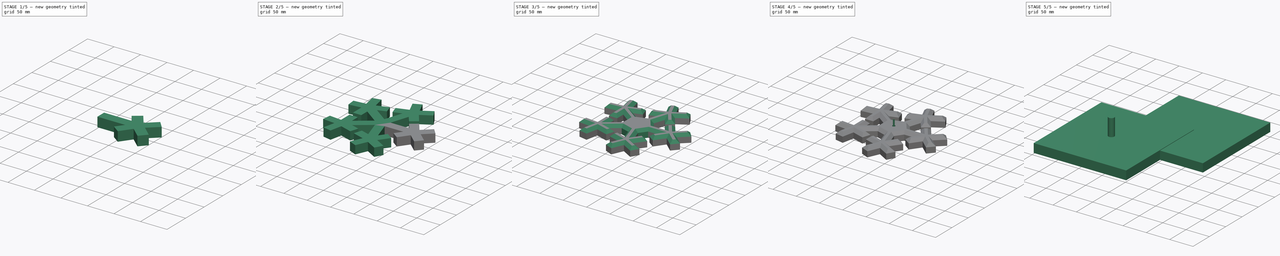
[diagram: build sequence overview — one tinted view per stage of 5, left to right]
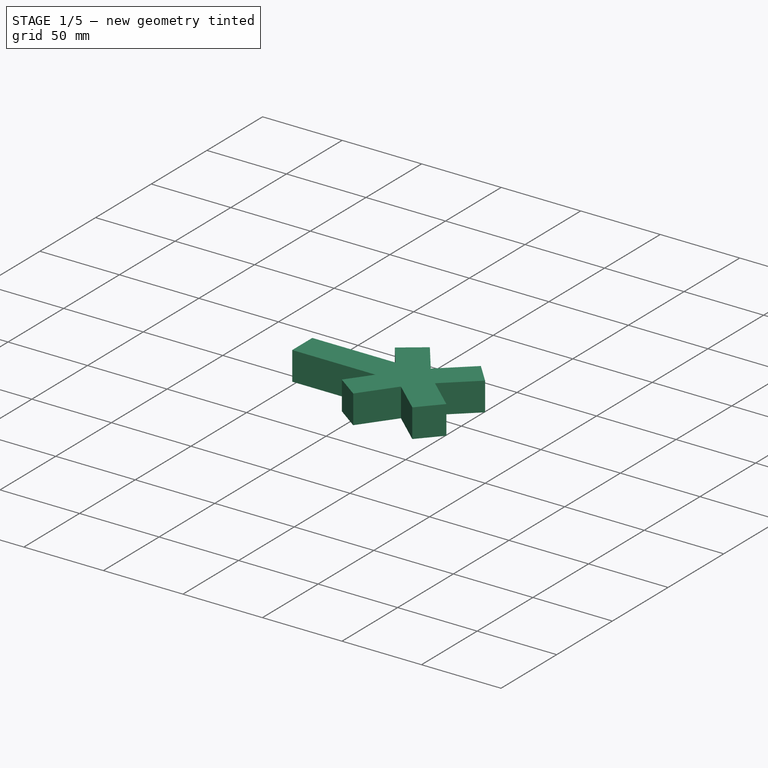
[diagram: stage 1 of 5 — iso view after this stage's code; geometry added in this stage tinted green]
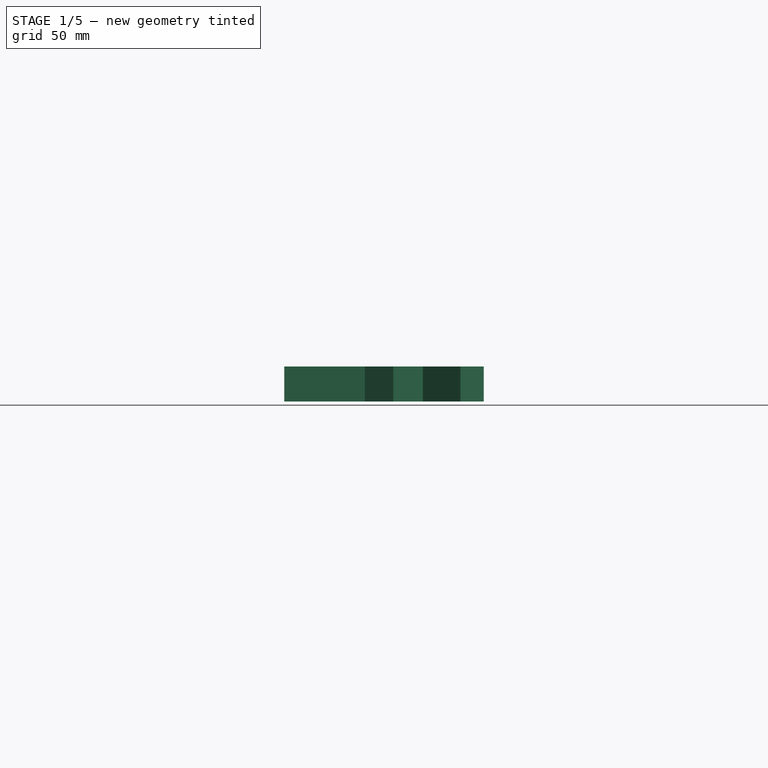
[diagram: stage 1 of 5 — front view after this stage's code; geometry added in this stage tinted green]
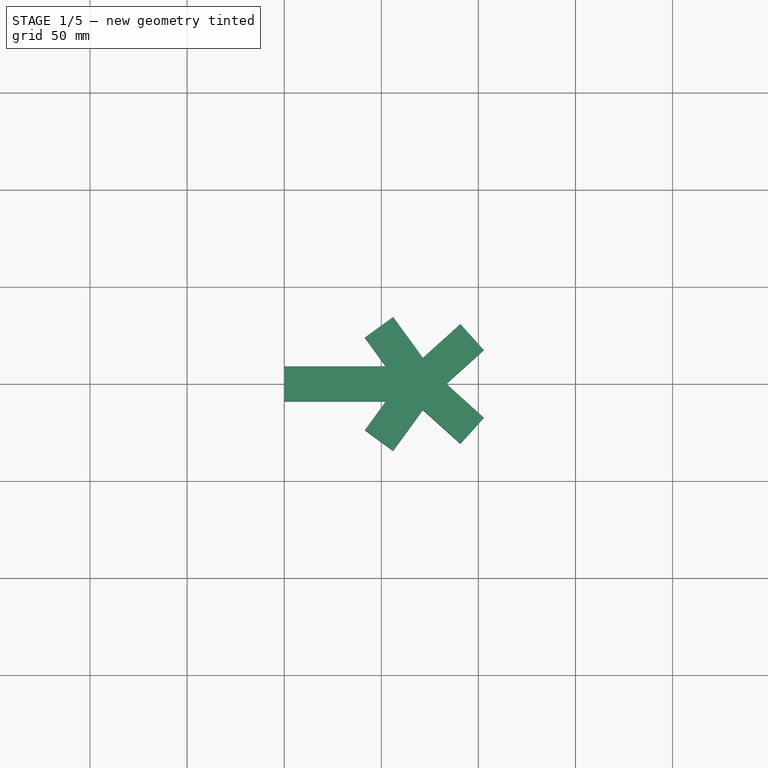
[diagram: stage 1 of 5 — top view after this stage's code; geometry added in this stage tinted green]
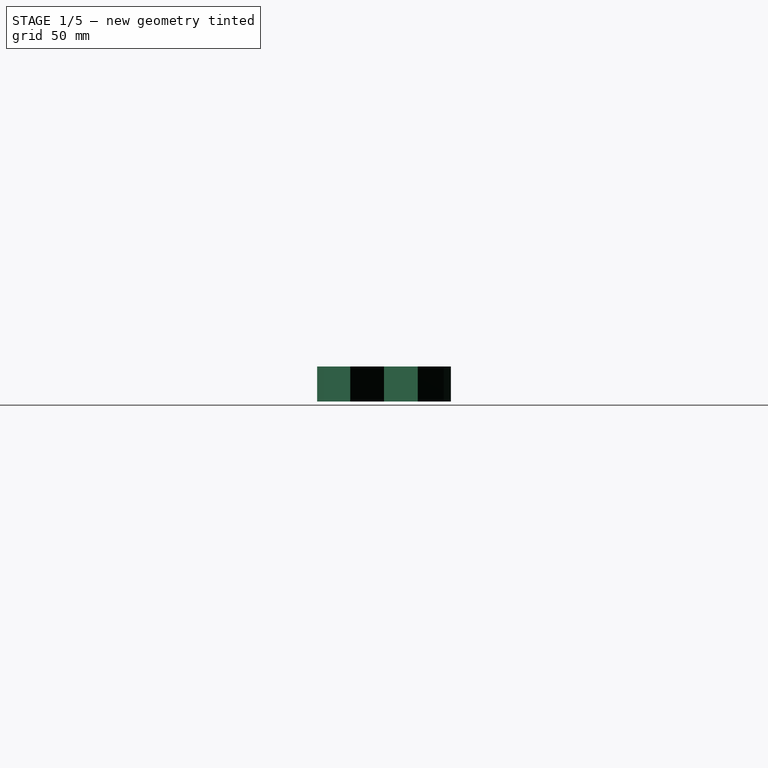
[diagram: stage 1 of 5 — right view after this stage's code; geometry added in this stage tinted green]
FCSTD DOCUMENT  (FreeCAD 0.22R35456 (Git))
Label: Christmas-tree-base
License: All rights reserved
LicenseURL: http://en.wikipedia.org/wiki/All_rights_reserved
objects: Part::FeaturePython×15, Path::FeaturePython×7, Sketcher::SketchObject×5, App::DocumentObjectGroup×3, Part::Compound×2, Part::Extrusion×2, PartDesign::Body×2, Part::Mirroring×1, Part::MultiFuse×1, PartDesign::FeatureBase×1, Part::Cylinder×1, App::FeaturePython×1, PartDesign::Pad×1, PartDesign::PolarPattern×1, PartDesign::Chamfer×1, PartDesign::Boolean×1
note: 39 computed .brp shape members not serialized (recipe doc carries the construction recipe); baked Part::Feature solids carry a one-line shape summary decoded from their .brp

FEATURE [Sketcher::SketchObject] Sketch
  FullyConstrained = false
  expr: Constraints[1] = 360 deg / PolarArray.Count / 2
  sketch-geometry (19):
    g0: LineSegment StartX=0 StartY=0 StartZ=0 EndX=113.262 EndY=82.2899 EndZ=0
    g1: LineSegment StartX=0 StartY=0 StartZ=0 EndX=140 EndY=0 EndZ=0
    g2: LineSegment StartX=18.3104 StartY=13.3033 StartZ=0 EndX=53.4449 EndY=13.3033 EndZ=0
    g3: LineSegment StartX=53.4449 StartY=13.3033 StartZ=0 EndX=64.3661 EndY=36.3417 EndZ=0
    g4: LineSegment StartX=64.3661 StartY=36.3417 StartZ=0 EndX=52.0079 EndY=50.1369 EndZ=0
    g5: LineSegment StartX=52.0079 StartY=50.1369 StartZ=0 EndX=59.4803 EndY=55.0227 EndZ=0
    g6: LineSegment StartX=59.4803 StartY=55.0227 StartZ=0 EndX=68.3897 EndY=43.2393 EndZ=0
    g7: LineSegment StartX=68.3897 StartY=43.2393 StartZ=0 EndX=70.9763 EndY=64.7943 EndZ=0
    g8: LineSegment StartX=70.9763 StartY=64.7943 StartZ=0 EndX=77.2991 EndY=64.7943 EndZ=0
    g9: LineSegment StartX=77.2991 StartY=64.7943 StartZ=0 EndX=74.4251 EndY=42.9519 EndZ=0
    g10: LineSegment StartX=74.4251 StartY=42.9519 StartZ=0 EndX=89.6573 EndY=53.5857 EndZ=0
    g11: LineSegment StartX=89.6573 StartY=53.5857 StartZ=0 EndX=93.6809 EndY=45.2511 EndZ=0
    g12: LineSegment StartX=93.6809 StartY=45.2511 StartZ=0 EndX=77.5865 EndY=37.4913 EndZ=0
    g13: LineSegment StartX=77.5865 StartY=37.4913 StartZ=0 EndX=67.8149 EndY=18.5228 EndZ=0
    g14: LineSegment StartX=67.8149 StartY=18.5228 StartZ=0 EndX=123.283 EndY=18.5228 EndZ=0
    g15: LineSegment StartX=123.283 StartY=18.5228 StartZ=0 EndX=128.169 EndY=42.0897 EndZ=0
    g16: LineSegment StartX=128.169 StartY=42.0897 StartZ=0 EndX=133.917 EndY=41.5149 EndZ=0
    g17: LineSegment StartX=133.917 StartY=41.5149 StartZ=0 EndX=129.031 EndY=15.3614 EndZ=0
    g18: LineSegment StartX=129.031 StartY=15.3614 StartZ=0 EndX=130.756 EndY=0 EndZ=0
  constraints (27):
    c: Coincident(g0,g-1)
    c: Angle(g0) = 0.628319
    c: Coincident(g1,g0)
    c: PointOnObject(g1,g-1)
    c: Equal(g1,g0)
    c: DistanceX(g1,g1) = 140
    c: PointOnObject(g2,g0)
    c: Horizontal(g2)
    c: Coincident(g2,g3)
    c: Coincident(g3,g4)
    c: Coincident(g4,g5)
    c: Coincident(g5,g6)
    c: Coincident(g6,g7)
    c: Coincident(g7,g8)
    c: Horizontal(g8)
    c: Coincident(g8,g9)
    c: Coincident(g9,g10)
    c: Coincident(g10,g11)
    c: Coincident(g11,g12)
    c: Coincident(g12,g13)
    c: Coincident(g13,g14)
    c: Horizontal(g14)
    c: Coincident(g14,g15)
    c: Coincident(g15,g16)
    c: Coincident(g16,g17)
    c: Coincident(g17,g18)
    c: PointOnObject(g18,g1)
FEATURE [Part::Mirroring] Part__Mirroring  label="Sketch (Mirror #1)"
  Base = (0,0,0)
  Normal = (0,1,0)
  Source = -> Sketch
FEATURE [Part::Compound] Compound
  Links = -> [Part__Mirroring,Sketch]
FEATURE [Part::FeaturePython] PolarArray  # WARN: FeaturePython — macro-defined, semantics opaque (R4)
  Alignment = 0
  AttacherType = Attacher::AttachEngine3D
  CellStart = A1
  Count = 5
  DistributionLaw = 0
  EndInclusive = false
  ExposePlacement = false
  FlipX = false
  FlipZ = false
  GeneratorMode = 0
  MarkerShape = 1
  MarkerSize = 20
  NumElements = 5
  OrientMode = 2
  Radius = 0
  Reverse = false
  SpanEnd = 360
  SpanStart = 0
  Step = 72
  Type = lattice2PolarArray2.PolarArray
  UseArcRadius = false
  UseArcRange = 0
  VSGVersion = 1
  Values = 0.0 | 72.0 | 144.0 | 216.0 | 288.0
  ValuesSource = 2
  isLattice = 1
FEATURE [Part::FeaturePython] Populate  label="Populate PolarArray with Compound"  # WARN: FeaturePython — macro-defined, semantics opaque (R4)
  Copying = 0
  ExposePlacement = false
  MarkerShape = 1
  MarkerSize = 0
  NumElements = 0
  Object = -> Compound
  OutputCompounding = 1
  PlacementsTo = -> PolarArray
  Referencing = 1
  Type = lattice2PopulateCopies.LatticePopulateCopies
  isLattice = 0
FEATURE [Sketcher::SketchObject] Sketch001
  FullyConstrained = true
FEATURE [Part::FeaturePython] PolarArray001  # WARN: FeaturePython — macro-defined, semantics opaque (R4)
  Alignment = 0
  AttacherType = Attacher::AttachEngine3D
  CellStart = A1
  Count = 4
  DistributionLaw = 0
  EndInclusive = true
  ExposePlacement = false
  FlipX = false
  FlipZ = false
  GeneratorMode = 0
  MarkerShape = 1
  MarkerSize = 10
  NumElements = 4
  OrientMode = 2
  Placement = pos=(70,0,0) rot=(0,0,1;0rad)
  Radius = 36
  Reverse = false
  SpanEnd = 126
  SpanStart = -126
  Step = 84
  Type = lattice2PolarArray2.PolarArray
  UseArcRadius = false
  UseArcRange = 0
  VSGVersion = 1
  Values = -126.0 | -42.0 | 42.0 | 126.0
  ValuesSource = 2
  isLattice = 1
  expr: SpanEnd = -SpanStart
FEATURE [Sketcher::SketchObject] Sketch002
  FullyConstrained = true
  expr: Constraints[6] = <<PolarArray001>>.Radius
  sketch-geometry (5):
    g0: LineSegment StartX=-36 StartY=-9 StartZ=0 EndX=-36 EndY=9 EndZ=0
    g1: LineSegment StartX=-36 StartY=9 StartZ=0 EndX=0 EndY=9 EndZ=0
    g2: LineSegment StartX=0 StartY=9 StartZ=0 EndX=-1.4e-15 EndY=-9 EndZ=0
    g3: LineSegment StartX=-1.4e-15 StartY=-9 StartZ=0 EndX=-36 EndY=-9 EndZ=0
    g4: GeomPoint X=-18 Y=0 Z=0
  constraints (12):
    c: Coincident(g0,g1)
    c: Coincident(g1,g2)
    c: Coincident(g2,g3)
    c: Coincident(g3,g0)
    c: Symmetric(g2,g0,g4)
    c: Equal(g1,g3)
    c: Distance(g3) = 36
    c: Distance(g2) = 18
    c: Symmetric(g1,g2,g-1)
    c: Perpendicular(g0,g3)
    c: PointOnObject(g4,g-1)
    c: Perpendicular(g0,g1)
FEATURE [Part::Extrusion] Extrude
  Base = -> Sketch002
  Dir = (0,0,1)
  DirMode = 2
  FaceMakerClass = Part::FaceMakerBullseye
  LengthFwd = 18
  LengthRev = 0
  Solid = true
  Symmetric = false
FEATURE [Part::FeaturePython] Populate001  label="Populate PolarArray001 with Extrude"  # WARN: FeaturePython — macro-defined, semantics opaque (R4)
  Copying = 0
  ExposePlacement = false
  MarkerShape = 1
  MarkerSize = 0
  NumElements = 0
  Object = -> Extrude
  OutputCompounding = 1
  PlacementsTo = -> PolarArray001
  Referencing = 0
  Type = lattice2PopulateCopies.LatticePopulateCopies
  isLattice = 0
FEATURE [Sketcher::SketchObject] Sketch003
  FullyConstrained = true
  expr: Constraints[11] = <<PolarArray001>>.Placement.Base.x
  expr: Constraints[6] = <<PolarArray001>>.Placement.Base.x
  sketch-geometry (5):
    g0: LineSegment StartX=70 StartY=8.99992 StartZ=0 EndX=1.06706e-05 EndY=9 EndZ=0
    g1: LineSegment StartX=1.06706e-05 StartY=9 StartZ=0 EndX=-1.06706e-05 EndY=-9 EndZ=0
    g2: LineSegment StartX=-1.06706e-05 StartY=-9 StartZ=0 EndX=70 EndY=-9.00008 EndZ=0
    g3: LineSegment StartX=70 StartY=-9.00008 StartZ=0 EndX=70 EndY=8.99992 EndZ=0
    g4: GeomPoint X=35 Y=-4.14966e-05 Z=0
  constraints (12):
    c: Coincident(g0,g1)
    c: Coincident(g1,g2)
    c: Coincident(g2,g3)
    c: Coincident(g3,g0)
    c: Symmetric(g2,g0,g4)
    c: Symmetric(g1,g0,g-1)
    c: DistanceX(g2,g2) = 70
    c: Perpendicular(g0,g3)
    c: Perpendicular(g2,g3)
    c: Perpendicular(g0,g1)
    c: Distance(g3) = 18
    c: Distance(g2) = 70
FEATURE [Part::Extrusion] Extrude001
  Base = -> Sketch003
  Dir = (0,0,1)
  DirMode = 2
  FaceMakerClass = Part::FaceMakerBullseye
  LengthFwd = 18
  LengthRev = 0
  Solid = true
  Symmetric = false
FEATURE [Part::FeaturePython] Populate002  label="Populate PolarArray with PolarArray001"  # WARN: FeaturePython — macro-defined, semantics opaque (R4)
  Copying = 0
  ExposePlacement = false
  MarkerShape = 1
  MarkerSize = 0
  NumElements = 20
  Object = -> PolarArray001
  OutputCompounding = 0
  PlacementsTo = -> PolarArray
  Referencing = 1
  Type = lattice2PopulateCopies.LatticePopulateCopies
  isLattice = 1
FEATURE [Part::FeaturePython] Join  label="ends"  # WARN: FeaturePython — macro-defined, semantics opaque (R4)
  ExposePlacement = false
  Interleave = false
  Links = -> [Populate002]
  MarkerShape = 1
  MarkerSize = 0
  NumElements = 20
  Type = lattice2JoinArrays.JoinArrays
  isLattice = 1
FEATURE [Part::FeaturePython] Join001  label="inners"  # WARN: FeaturePython — macro-defined, semantics opaque (R4)
  ExposePlacement = false
  Interleave = false
  Links = -> [PolarArray]
  MarkerShape = 1
  MarkerSize = 5
  NumElements = 5
  Type = lattice2JoinArrays.JoinArrays
  isLattice = 1
FEATURE [Part::MultiFuse] Fusion
  Refine = true
  Shapes = -> [Populate001]
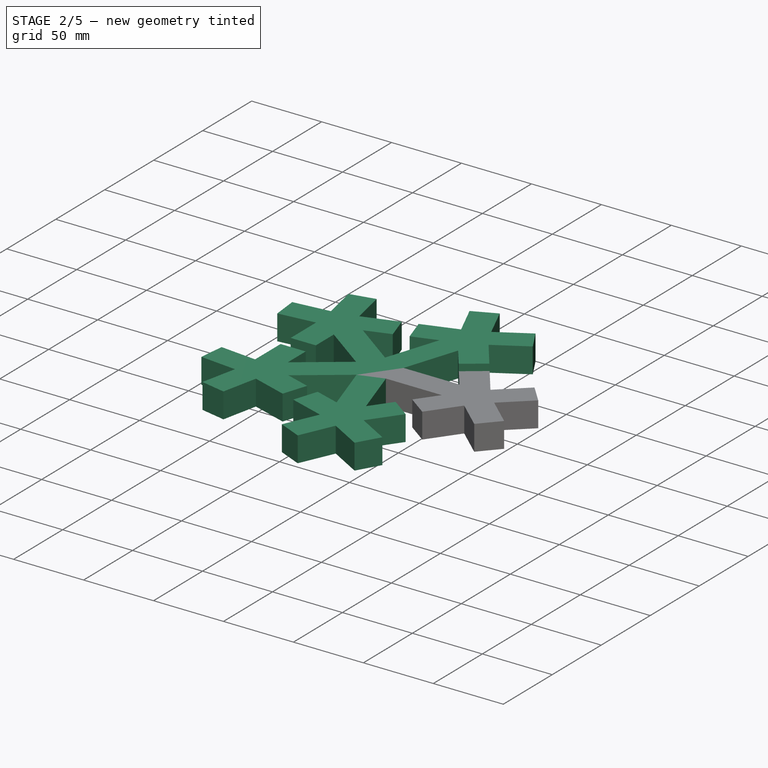
[diagram: stage 2 of 5 — iso view after this stage's code; geometry added in this stage tinted green]
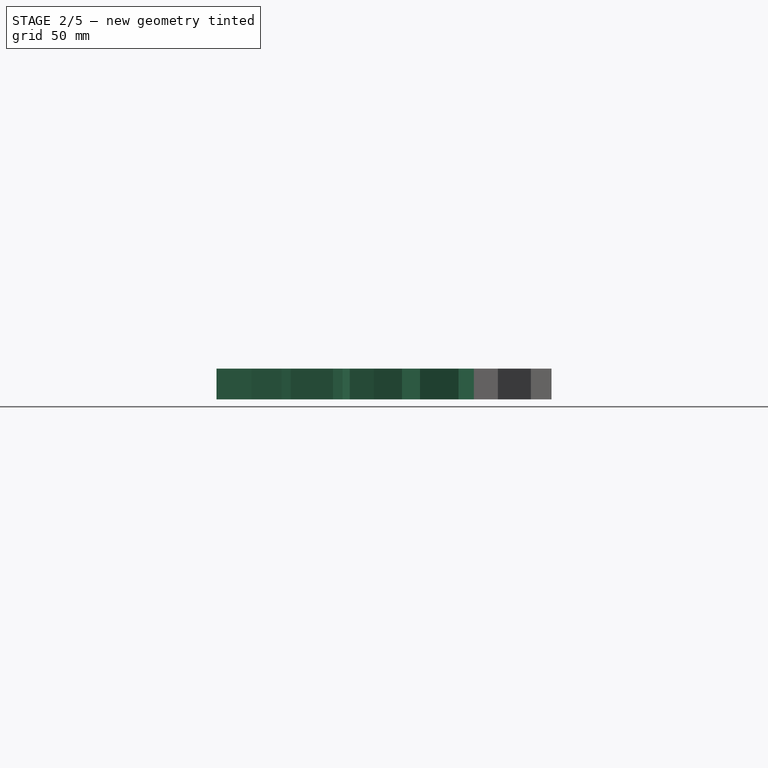
[diagram: stage 2 of 5 — front view after this stage's code; geometry added in this stage tinted green]
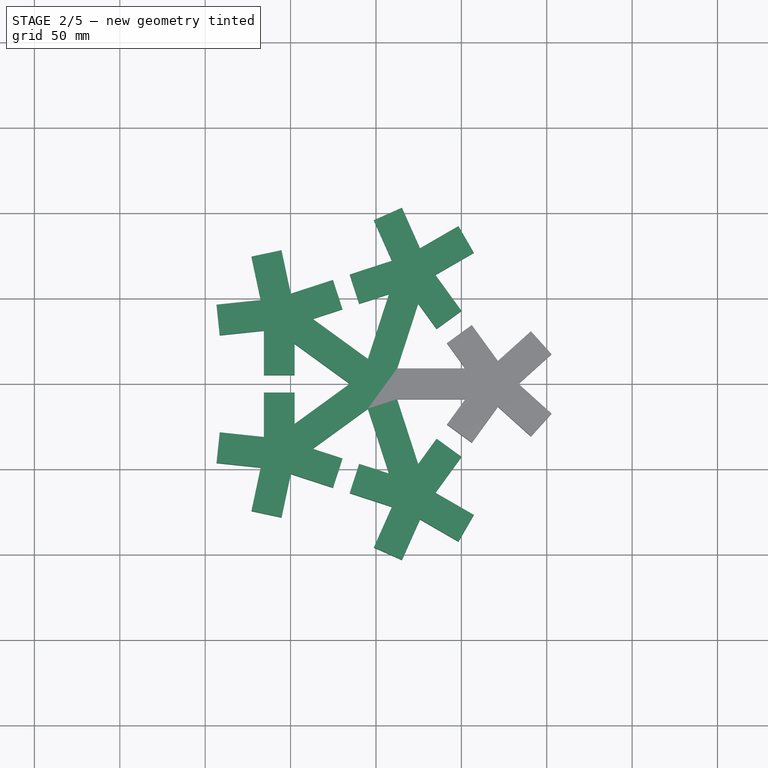
[diagram: stage 2 of 5 — top view after this stage's code; geometry added in this stage tinted green]
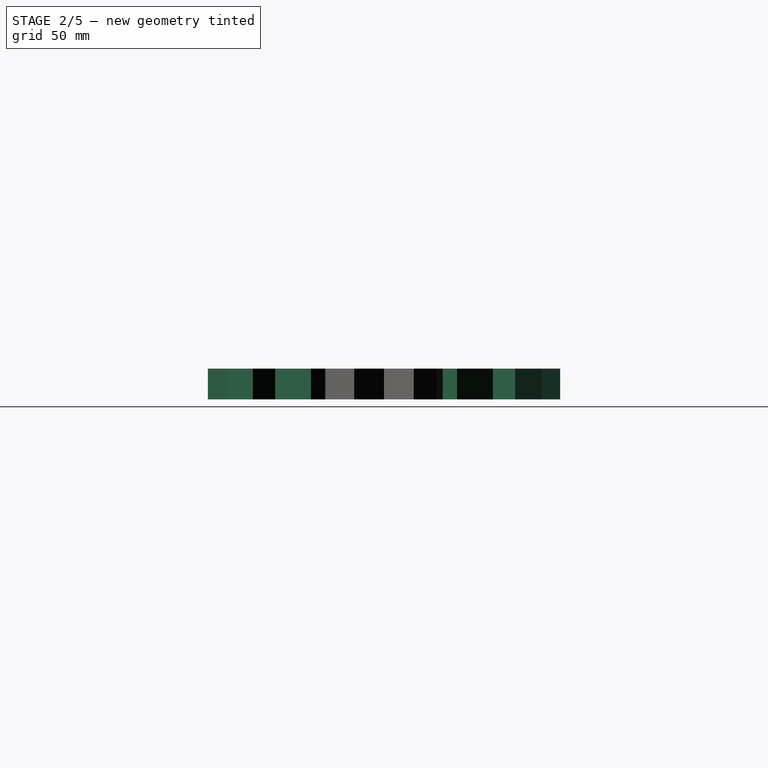
[diagram: stage 2 of 5 — right view after this stage's code; geometry added in this stage tinted green]
FEATURE [Part::FeaturePython] Connect  # WARN: FeaturePython — macro-defined, semantics opaque (R4)
  Objects = -> [Extrude001,Fusion]
  Refine = true
  Tolerance = 0
FEATURE [Part::FeaturePython] Populate003  label="Populate inners with Connect"  # WARN: FeaturePython — macro-defined, semantics opaque (R4)
  Copying = 0
  ExposePlacement = false
  MarkerShape = 1
  MarkerSize = 0
  NumElements = 0
  Object = -> Connect
  OutputCompounding = 1
  PlacementsTo = -> Join001
  Referencing = 0
  Type = lattice2PopulateCopies.LatticePopulateCopies
  isLattice = 0
FEATURE [Part::FeaturePython] Connect001  # WARN: FeaturePython — macro-defined, semantics opaque (R4)
  Objects = -> [Populate003]
  Refine = true
  Tolerance = 0
FEATURE [PartDesign::FeatureBase] BaseFeature
  BaseFeature = -> Connect001
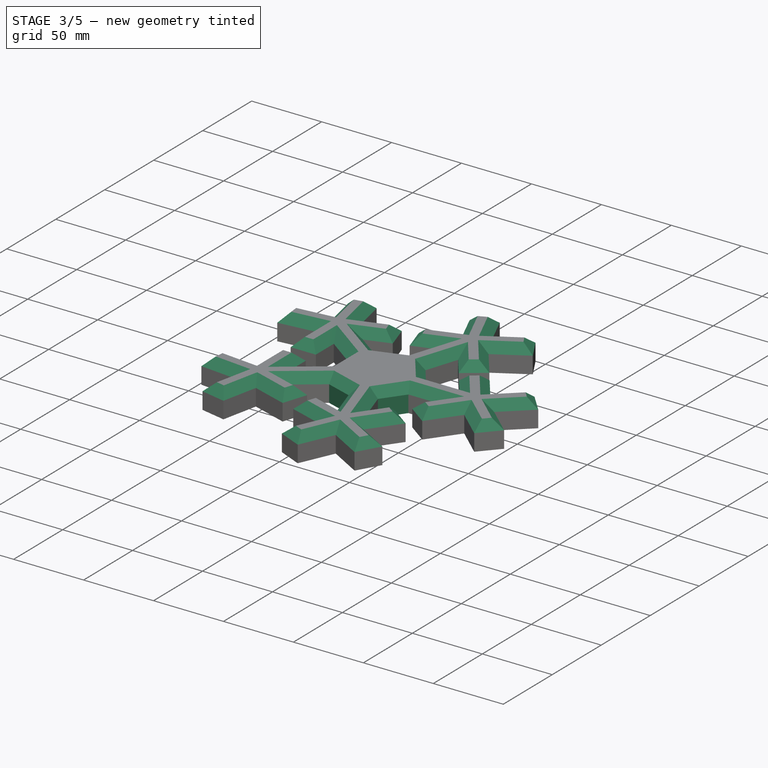
[diagram: stage 3 of 5 — iso view after this stage's code; geometry added in this stage tinted green]
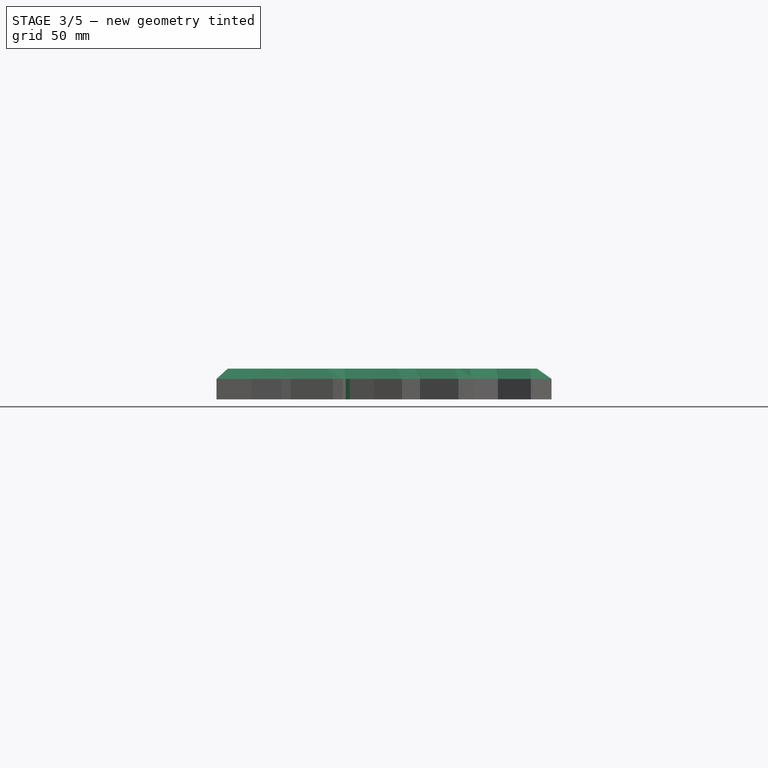
[diagram: stage 3 of 5 — front view after this stage's code; geometry added in this stage tinted green]
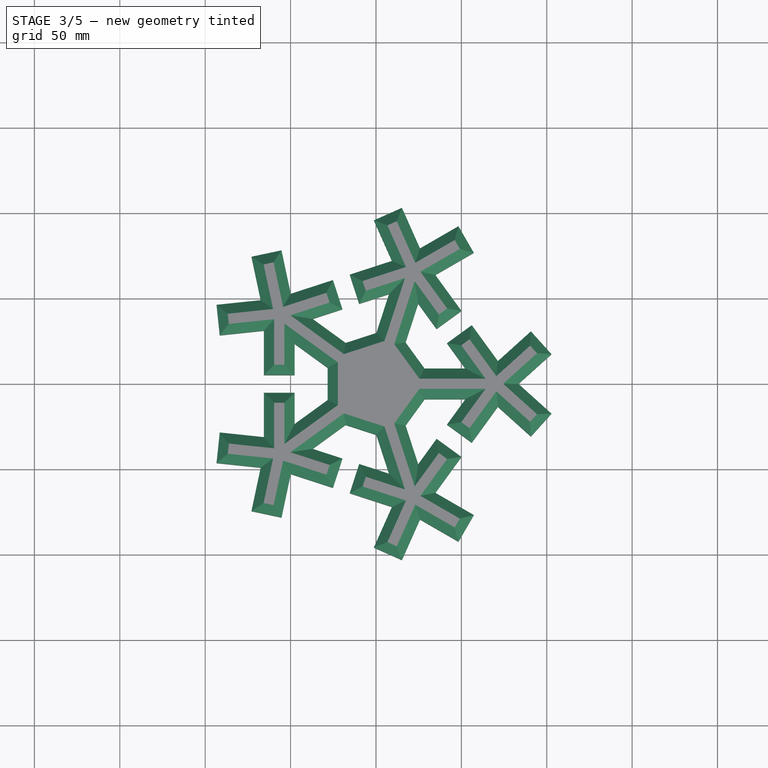
[diagram: stage 3 of 5 — top view after this stage's code; geometry added in this stage tinted green]
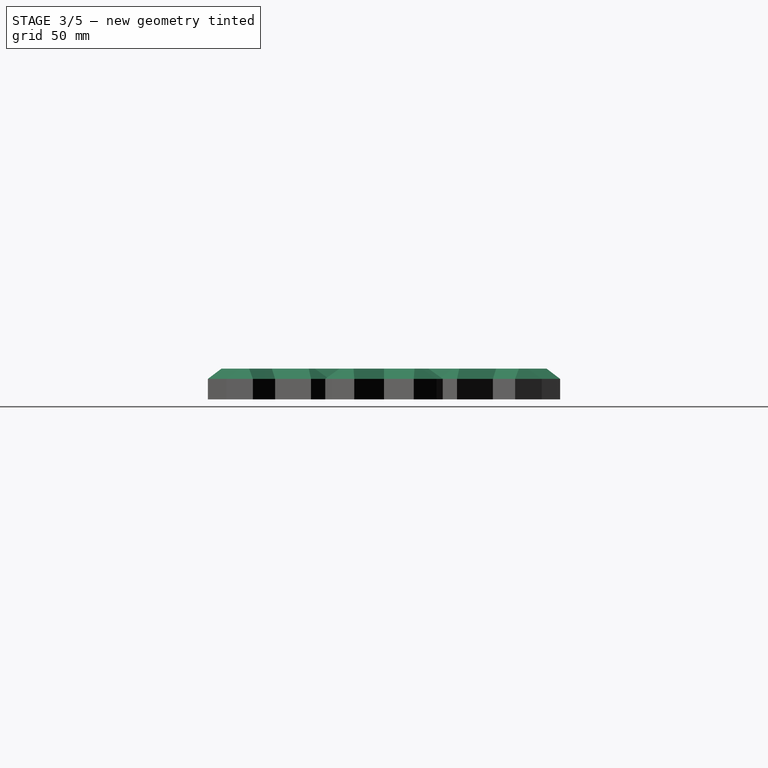
[diagram: stage 3 of 5 — right view after this stage's code; geometry added in this stage tinted green]
FEATURE [Path::FeaturePython] _5_Deg__Chamfer  label="90 Deg. Chamfer001"  # Path/CAM operation (typed FeaturePython)
  HorizFeed = 51.6667
  HorizRapid = 0
  SpindleDir = 0
  SpindleSpeed = 15000
  Tool = -> ToolBit001
  ToolNumber = 2
  VertFeed = 16.6667
  VertRapid = 0
  expr: HorizRapid = SetupSheet.HorizRapid
  expr: VertRapid = SetupSheet.VertRapid
FEATURE [App::DocumentObjectGroup] Tools
  Group = -> [__175mm_Endmill,_5_Deg__Chamfer]
FEATURE [Sketcher::SketchObject] Sketch004
  FullyConstrained = true
  MapMode = 5
  Support = -> [XY_Plane]
  expr: Constraints[5] = 360 deg / <<PolarArray>>.Count
  sketch-geometry (3):
    g0: LineSegment StartX=0 StartY=0 StartZ=0 EndX=35 EndY=0 EndZ=0
    g1: LineSegment StartX=35 StartY=0 StartZ=0 EndX=10.8156 EndY=33.287 EndZ=0
    g2: LineSegment StartX=0 StartY=0 StartZ=0 EndX=10.8156 EndY=33.287 EndZ=0
  constraints (8):
    c: Coincident(g-1,g0)
    c: PointOnObject(g0,g-1)
    c: Coincident(g0,g1)
    c: Coincident(g2,g0)
    c: Coincident(g2,g1)
    c: Angle(g2) = 1.25664
    c: Equal(g0,g2)
    c: DistanceX(g0,g0) = 35
FEATURE [PartDesign::Pad] Pad
  BaseFeature = -> BaseFeature
  Direction = (0,0,1)
  Length = 18
  Length2 = 10
  Profile = -> Sketch004
  ReferenceAxis = -> Sketch004 [N_Axis]
  Type = 0
FEATURE [PartDesign::PolarPattern] PolarPattern
  Angle = 360
  Axis = -> Sketch004 [N_Axis]
  BaseFeature = -> Pad
  Mode = 0
  Occurrences = 5
  Offset = 120
  Originals = -> [Pad]
  Refine = true
  expr: Occurrences = <<PolarArray>>.Count
FEATURE [PartDesign::Chamfer] Chamfer
  Angle = 45
  Base = -> PolarPattern [Face77]
  BaseFeature = -> PolarPattern
  ChamferType = 0
  FlipDirection = false
  Size = 6
  Size2 = 1
  SupportTransform = false
  UseAllEdges = false
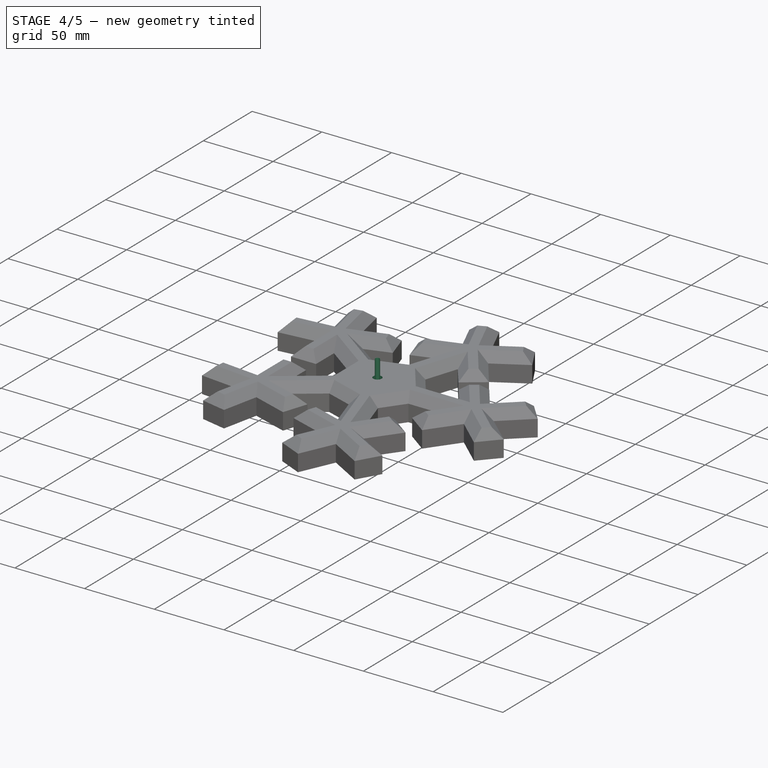
[diagram: stage 4 of 5 — iso view after this stage's code; geometry added in this stage tinted green]
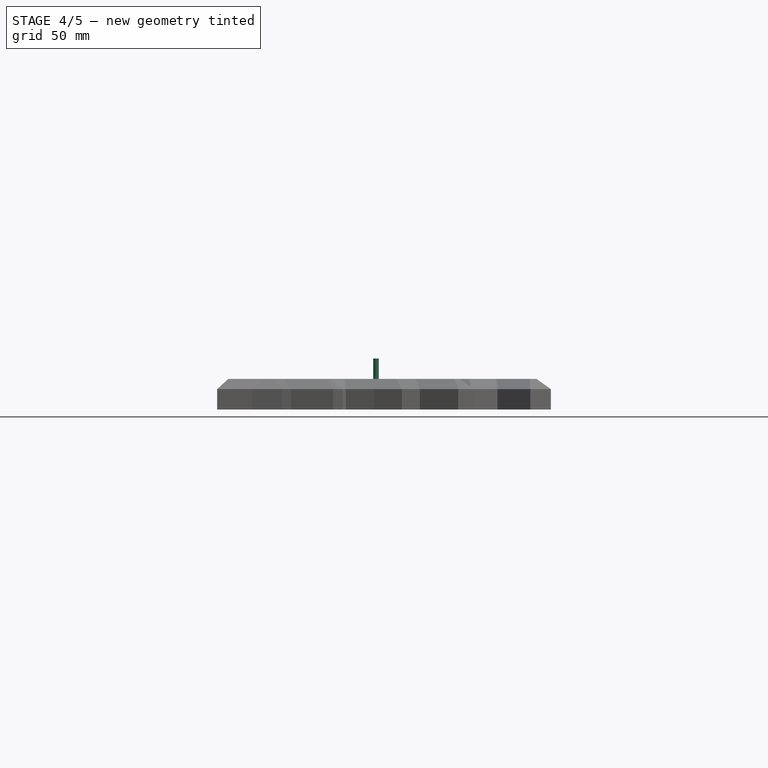
[diagram: stage 4 of 5 — front view after this stage's code; geometry added in this stage tinted green]
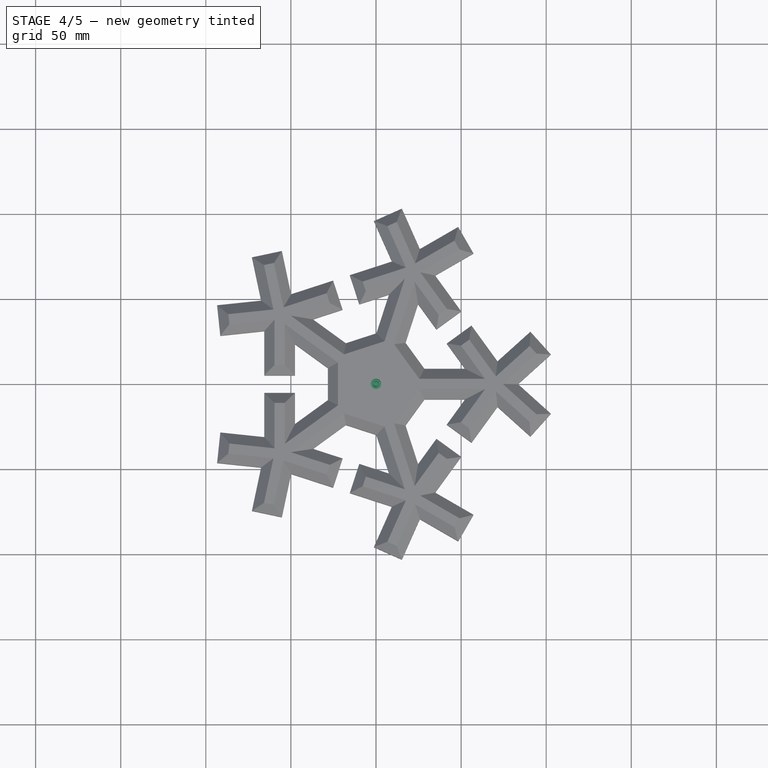
[diagram: stage 4 of 5 — top view after this stage's code; geometry added in this stage tinted green]
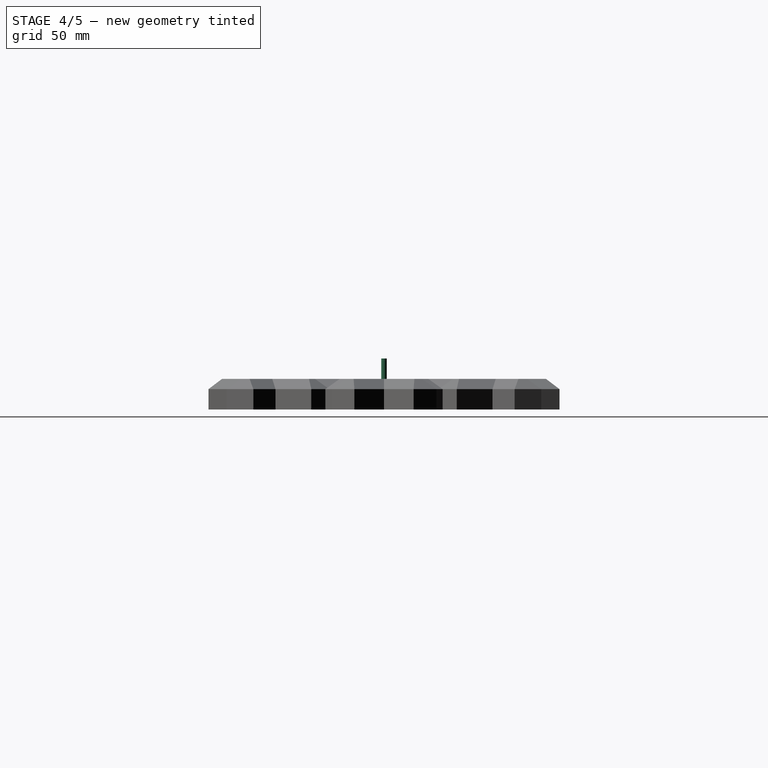
[diagram: stage 4 of 5 — right view after this stage's code; geometry added in this stage tinted green]
FEATURE [Part::Cylinder] Cylinder
  Angle = 360
  AttacherType = Attacher::AttachEngine3D
  FirstAngle = 0
  Height = 20
  Placement = pos=(0,0,2) rot=(0,0,1;0rad)
  Radius = 3
  SecondAngle = 0
FEATURE [PartDesign::Body] Body001
  Origin = -> Origin001
FEATURE [Part::Compound] Compound001
  Links = -> [Cylinder]
FEATURE [App::FeaturePython] SetupSheet  # Path/CAM operation (typed FeaturePython)
  ClearanceHeightExpression = OpStockZMax+SetupSheet.ClearanceHeightOffset
  ClearanceHeightOffset = 5
  CoolantMode = 0
  CoolantModes = None | Flood | Mist
  FinalDepthExpression = OpFinalDepth
  HorizRapid = 0
  ProfileDirection = 1
  ProfileprocessCircles = true
  ProfileprocessHoles = true
  ProfileprocessPerimeter = true
  SafeHeightExpression = OpStockZMax+SetupSheet.SafeHeightOffset
  SafeHeightOffset = 3
  StartDepthExpression = OpStartDepth
  StepDownExpression = OpToolDiameter
  VertRapid = 0
FEATURE [Part::FeaturePython] ToolBit  label="3.175mm Endmill"  # Path/CAM toolbit (typed FeaturePython)
  BitPropertyNames = Chipload | CuttingEdgeHeight | Diameter | Flutes | Length | Material | ShankDiameter | SpindleDirection
  BitShape = <path>
  Chipload = 0
  CuttingEdgeHeight = 30
  Diameter = 3.17
  Flutes = 0
  Length = 10
  Material = 0
  ShankDiameter = 3
  ShapeName = endmill
  SpindleDirection = 0
FEATURE [PartDesign::Boolean] Boolean
  BaseFeature = -> Chamfer
  Group = -> [Compound001]
  Type = 1
  UsePlacement = true
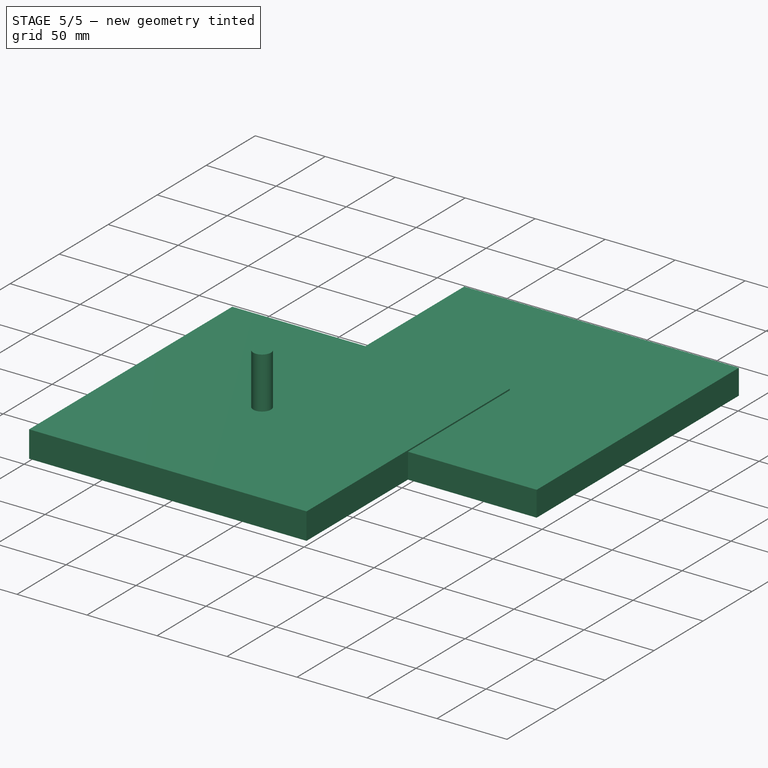
[diagram: stage 5 of 5 — iso view after this stage's code; geometry added in this stage tinted green]
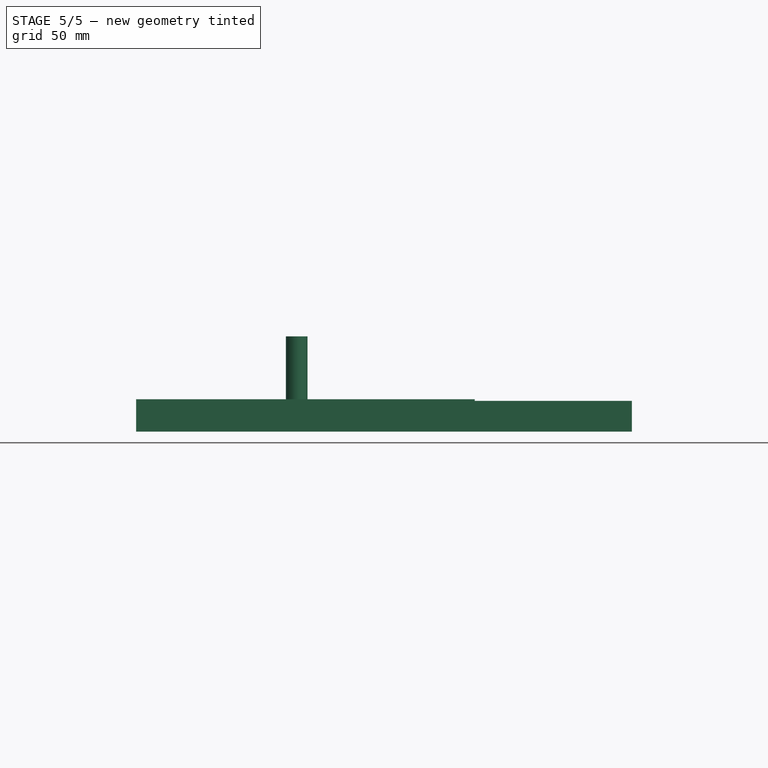
[diagram: stage 5 of 5 — front view after this stage's code; geometry added in this stage tinted green]
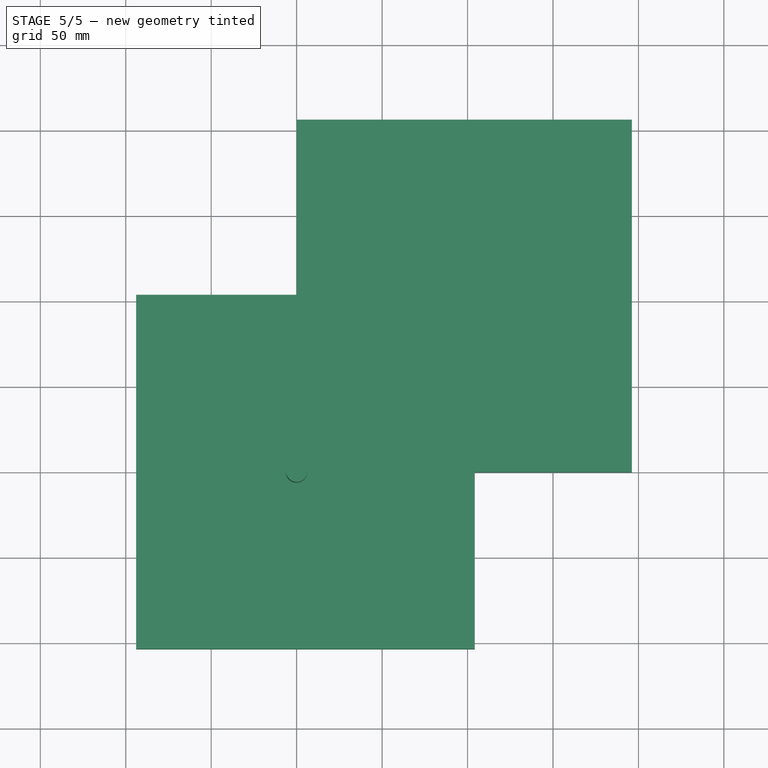
[diagram: stage 5 of 5 — top view after this stage's code; geometry added in this stage tinted green]
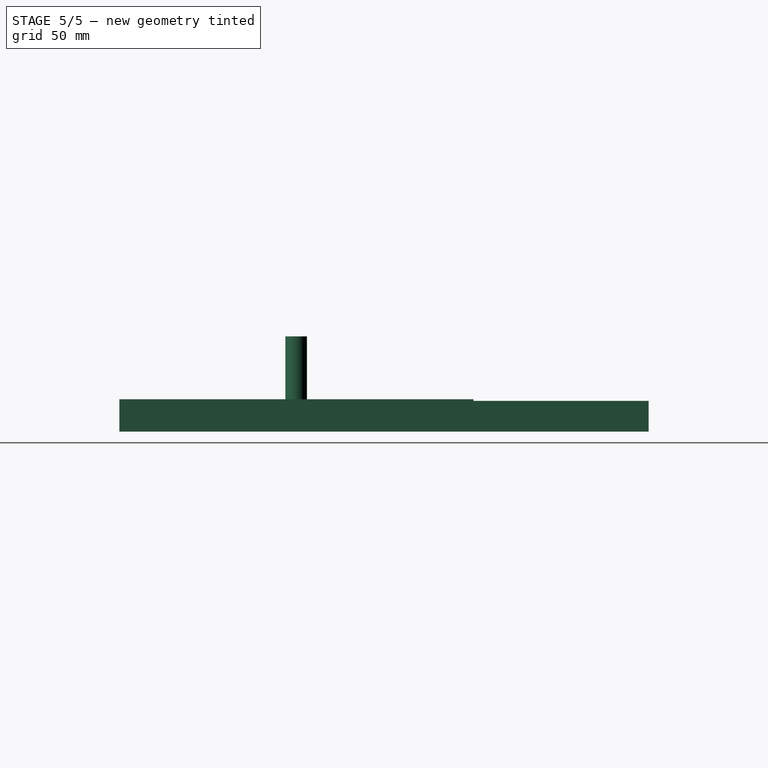
[diagram: stage 5 of 5 — right view after this stage's code; geometry added in this stage tinted green]
FEATURE [Path::FeaturePython] __175mm_Endmill  label="3.175mm Endmill001"  # Path/CAM operation (typed FeaturePython)
  HorizFeed = 51.6667
  HorizRapid = 0
  SpindleDir = 0
  SpindleSpeed = 18000
  Tool = -> ToolBit
  ToolNumber = 1
  VertFeed = 16.6667
  VertRapid = 0
  expr: HorizRapid = SetupSheet.HorizRapid
  expr: VertRapid = SetupSheet.VertRapid
FEATURE [Part::FeaturePython] ToolBit001  label="90 Deg. Chamfer"  # Path/CAM toolbit (typed FeaturePython)
  BitPropertyNames = Chipload | CuttingEdgeAngle | CuttingEdgeHeight | Diameter | Flutes | Length | Material | ShankDiameter | TipDiameter
  BitShape = <path>
  Chipload = 0
  CuttingEdgeAngle = 90
  CuttingEdgeHeight = 17
  Diameter = 32
  File = <userpath>/.local/share/FreeCAD/Macro/Bit/45degree_chamfer.fctb
  Flutes = 0
  Length = 55.8
  Material = 0
  ShankDiameter = 12.67
  ShapeName = chamfer
  TipDiameter = 0
FEATURE [PartDesign::Body] Body
  BaseFeature = -> Connect001
  Group = -> [BaseFeature,Sketch004,Pad,PolarPattern,Chamfer,Boolean]
  Origin = -> Origin
  Tip = -> Boolean
FEATURE [Part::FeaturePython] Clone  label="Model-Body"  # Draft clone (typed FeaturePython)
  AttacherType = Attacher::AttachEngine3D
  Fuse = false
  Objects = -> [Body]
  PathResource = Model
  Placement = pos=(93.3747,103.122,0) rot=(0,0,1;0rad)
  Scale = (1,1,1)
FEATURE [App::DocumentObjectGroup] Model
  Group = -> [Clone]
FEATURE [Part::FeaturePython] Stock  # WARN: FeaturePython — macro-defined, semantics opaque (R4)
  Base = -> Model
  ExtXneg = 1
  ExtXpos = 1
  ExtYneg = 0
  ExtYpos = 1
  ExtZneg = 0
  ExtZpos = 1
  Placement = pos=(-92.9234,-103.481,0) rot=(0,0,1;0rad)
  StockType = FromBase
FEATURE [Path::FeaturePython] Profile  # Path/CAM operation (typed FeaturePython)
  Active = true
  AreaParams:
    Tolerance = 1e-07
    FitArcs = True
    Simplify = False
    CleanDistance = 0.0
    Accuracy = 0.01
    Unit = 1.0
    MinArcPoints = 4
    MaxArcPoints = 100
    ClipperScale = 10000000.0
    Fill = 0
    Coplanar = 0
    Reorient = True
    Outline = False
    Explode = False
    OpenMode = 0
    Deflection = 0.01
    SubjectFill = 0
    ClipFill = 0
    Offset = 1.585
    ExtraPass = 0
    Stepover = 0.0
    LastStepover = 0.0
    JoinType = 0
    EndType = 0
    MiterLimit = 2.0
    RoundPrecision = 0.0
    PocketMode = 0
    ToolRadius = 1.0
    PocketExtraOffset = 0.0
    PocketStepover = 0.0
    PocketLastStepover = 0.0
    FromCenter = False
    Angle = 45.0
    AngleShift = 0.0
    Shift = 0.0
    Thicken = False
    SectionCount = -1
    Stepdown = 1.0
    SectionOffset = 0.0
    SectionTolerance = 1e-06
    SectionMode = 2
    Project = False
  Base = -> [Clone]
  ClearanceHeight = 24
  CoolantMode = 0
  CycleTime = 00:01:40
  Direction = 1
  FinalDepth = 0
  HandleMultipleFeatures = 0
  JoinType = 0
  MiterLimit = 0.1
  OffsetExtra = 0
  OpFinalDepth = 0
  OpStartDepth = 19
  OpStockZMax = 19
  OpStockZMin = 0
  OpToolDiameter = 3.17
  PathParams:
    orientation = 0
    feedrate = 51.666666666666664
    feedrate_v = 16.666666666666668
    verbose = True
    resume_height = 22.00000000000001
    retraction = 24.00000000000001
    return_end = True
    preamble = False
  SafeHeight = 22
  Side = 0
  SplitArcs = false
  StartDepth = 19
  StartPoint = (0,0,0)
  StepDown = 7
  ToolController = -> __175mm_Endmill
  UseComp = true
  UseStartPoint = false
  processCircles = true
  processHoles = true
  processPerimeter = true
  expr: ClearanceHeight = OpStockZMax + SetupSheet.ClearanceHeightOffset
  expr: FinalDepth = OpFinalDepth
  expr: SafeHeight = OpStockZMax + SetupSheet.SafeHeightOffset
  expr: Side = 0
  expr: StartDepth = OpStartDepth
FEATURE [Path::FeaturePython] Deburr  # Path/CAM operation (typed FeaturePython)
  Active = true
  Base = -> [Clone]
  ClearanceHeight = 24
  CoolantMode = 0
  CycleTime = 00:00:51
  Direction = 0
  EntryPoint = 0
  ExtraDepth = 10
  Join = 0
  OpStockZMax = 19
  OpStockZMin = 0
  OpToolDiameter = 32
  SafeHeight = 22
  Side = 0
  StartDepth = 19
  StepDown = 5
  ToolController = -> _5_Deg__Chamfer
  Width = 0
  expr: ClearanceHeight = OpStockZMax + SetupSheet.ClearanceHeightOffset
  expr: SafeHeight = OpStockZMax + SetupSheet.SafeHeightOffset
  expr: StepDown = 5
FEATURE [Path::FeaturePython] Pocket_Shape  # Path/CAM operation (typed FeaturePython)
  Active = true
  AreaParams:
    Tolerance = 1e-07
    FitArcs = True
    Simplify = False
    CleanDistance = 0.0
    Accuracy = 0.01
    Unit = 1.0
    MinArcPoints = 4
    MaxArcPoints = 100
    ClipperScale = 10000000.0
    Fill = 0
    Coplanar = 0
    Reorient = True
    Outline = False
    Explode = False
    OpenMode = 0
    Deflection = 0.01
    SubjectFill = 0
    ClipFill = 0
    Offset = 0.0
    ExtraPass = 0
    Stepover = 0.0
    LastStepover = 0.0
    JoinType = 0
    EndType = 0
    MiterLimit = 2.0
    RoundPrecision = 0.0
    PocketMode = 2
    ToolRadius = 1.585
    PocketExtraOffset = 0.0
    PocketStepover = 3.17
    PocketLastStepover = 0.0
    FromCenter = True
    Angle = 45.0
    AngleShift = 0.0
    Shift = 0.0
    Thicken = False
    SectionCount = -1
    Stepdown = 1.0
    SectionOffset = 0.0
    SectionTolerance = 1e-06
    SectionMode = 2
    Project = False
  Base = -> [Clone]
  ClearanceHeight = 24
  CoolantMode = 0
  CutMode = 0
  CycleTime = 00:00:13
  ExtensionCorners = true
  ExtensionLengthDefault = 1.585
  ExtraOffset = 0
  FinalDepth = 2
  FinishDepth = 0
  KeepToolDown = false
  MinTravel = false
  OffsetPattern = 1
  OpFinalDepth = 2
  OpStartDepth = 19
  OpStockZMax = 19
  OpStockZMin = 0
  OpToolDiameter = 3.17
  PathParams:
    orientation = 1
    feedrate = 51.666666666666664
    feedrate_v = 16.666666666666668
    verbose = True
    resume_height = 22.00000000000001
    retraction = 24.00000000000001
    return_end = True
    preamble = False
  PocketLastStepOver = 0
  SafeHeight = 22
  SplitArcs = false
  StartAt = 0
  StartDepth = 19
  StartPoint = (0,0,0)
  StepDown = 7
  StepOver = 100
  ToolController = -> __175mm_Endmill
  UseOutline = false
  UseRestMachining = false
  UseStartPoint = false
  ZigZagAngle = 45
  expr: ClearanceHeight = OpStockZMax + SetupSheet.ClearanceHeightOffset
  expr: ExtensionLengthDefault = OpToolDiameter / 2
  expr: FinalDepth = OpFinalDepth
  expr: SafeHeight = OpStockZMax + SetupSheet.SafeHeightOffset
  expr: StartDepth = OpStartDepth
FEATURE [Part::FeaturePython] BoundBox  label="BoundBox of Model-Body"  # WARN: FeaturePython — macro-defined, semantics opaque (R4)
  Center = (98.0751,103.122,9)
  CompoundTraversal = 0
  OrientMode = 0
  Padding = 0
  Precision = false
  ScaleFactor = 1
  ShapeLink = -> Clone
  Size = (196.15,206.244,18)
FEATURE [Path::FeaturePython] DressupTag  # Path/CAM operation (typed FeaturePython)
  Angle = 45
  Base = -> Profile
  Height = 3.5
  Positions = (5) [(130.392,190.802,0),(21.4254,165.423,0),(11.89,53.9462,0),(114.964,10.4294,0),(188.202,95.011,0)]
  Radius = 0
  SegmentationFactor = 50
  Width = 10
FEATURE [App::DocumentObjectGroup] Operations
  Group = -> [DressupTag,Deburr,Pocket_Shape]
FEATURE [Path::FeaturePython] Job  # Path/CAM operation (typed FeaturePython)
  CycleTime = 00:02:44
  Fixtures = G54
  GeometryTolerance = 0.01
  JobType = 0
  LastPostProcessDate = 2023-12-31 19:25:11.189926
  LastPostProcessOutput = <userpath>/2CAF-B51C/Christmas-tree-base-0.tap \n<userpath>/2CAF-B51C/Christmas-tree-base-1.tap \n<userpath>/2CAF-B51C/Christmas-tree-base-2.tap
  Model = -> Model
  Operations = -> Operations
  OrderOutputBy = 1
  PostProcessor = 3
  PostProcessorOutputFile = %d.tap
  SetupSheet = -> SetupSheet
  SplitOutput = true
  Stock = -> Stock
  Tools = -> Tools
note: 2 file-system paths scrubbed to <path> (originals preserved in the JSON sidecar)
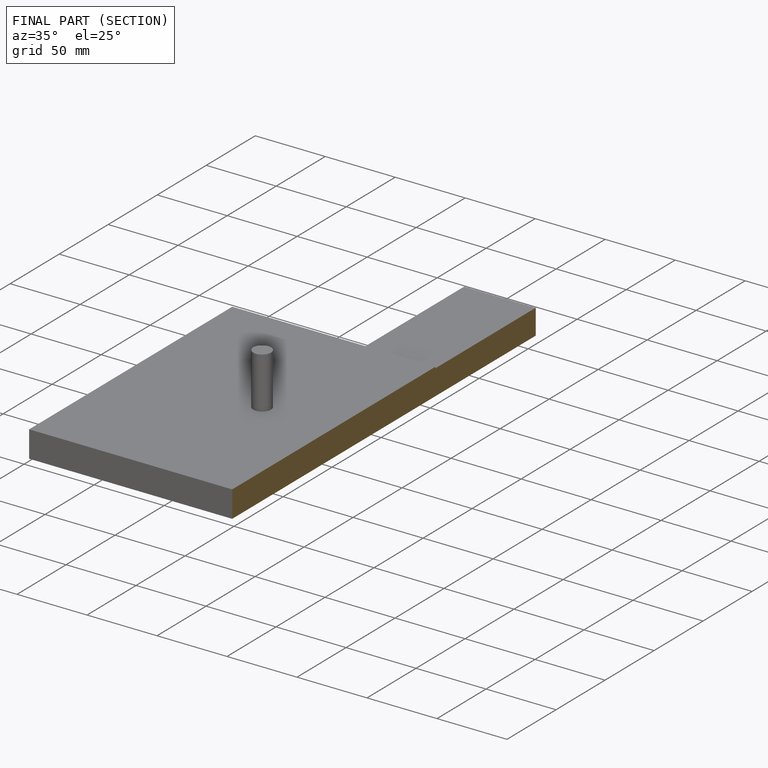
[diagram: finished part — half-section view (interior)]
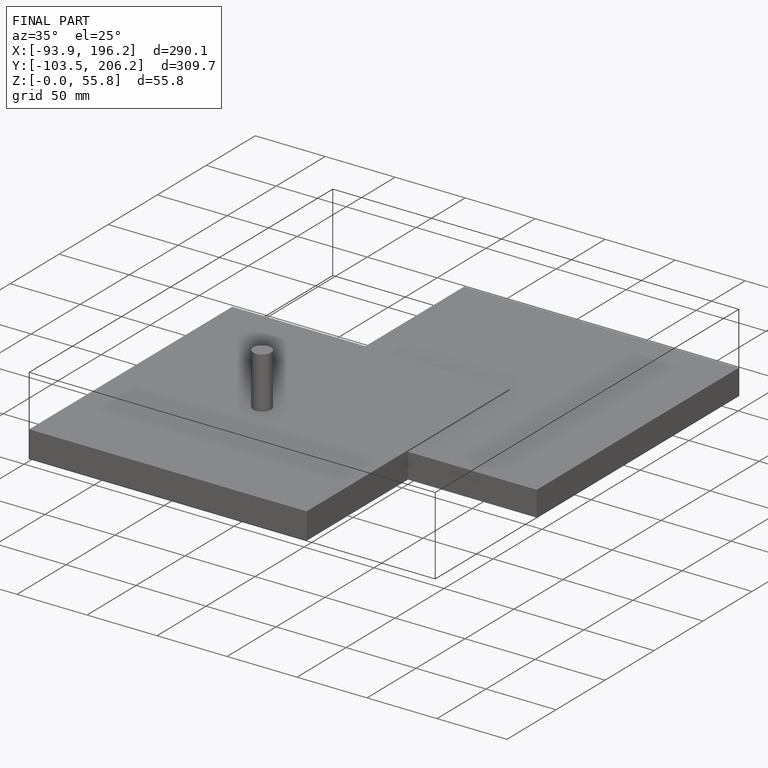
[diagram: finished part — iso view with bounding-box wireframe]
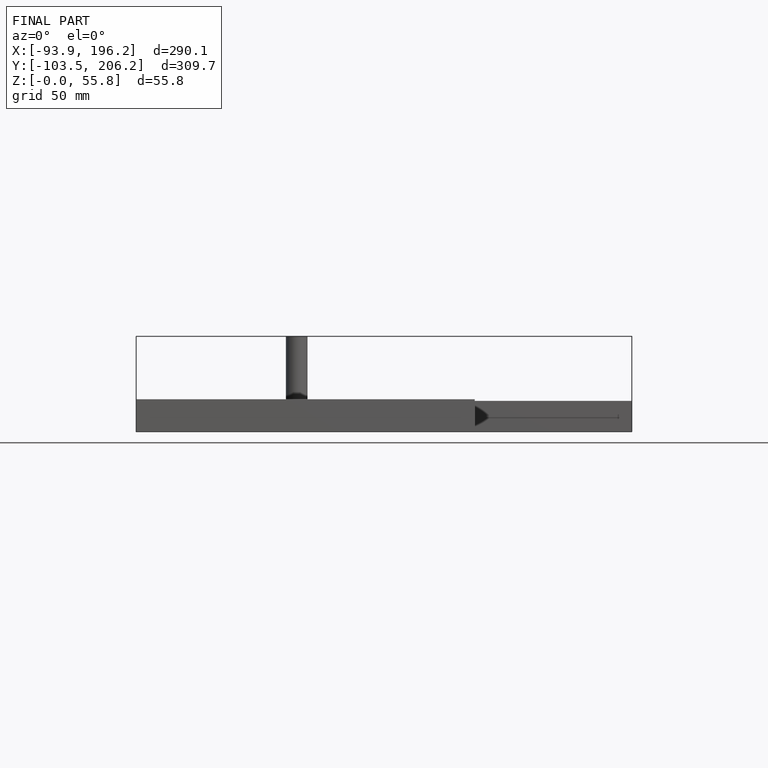
[diagram: finished part — front view with bounding-box wireframe]
